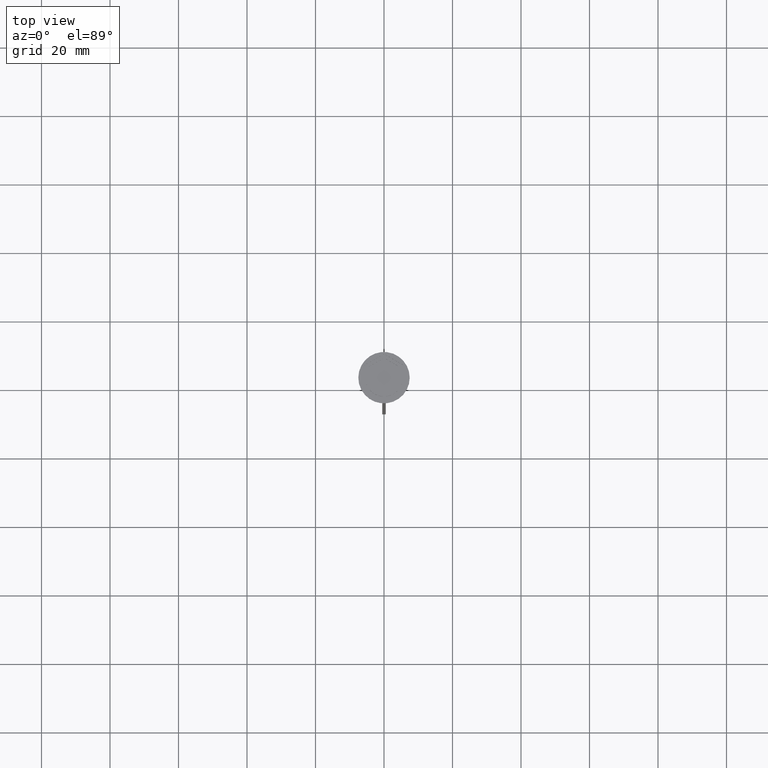
[diagram: clean part render]
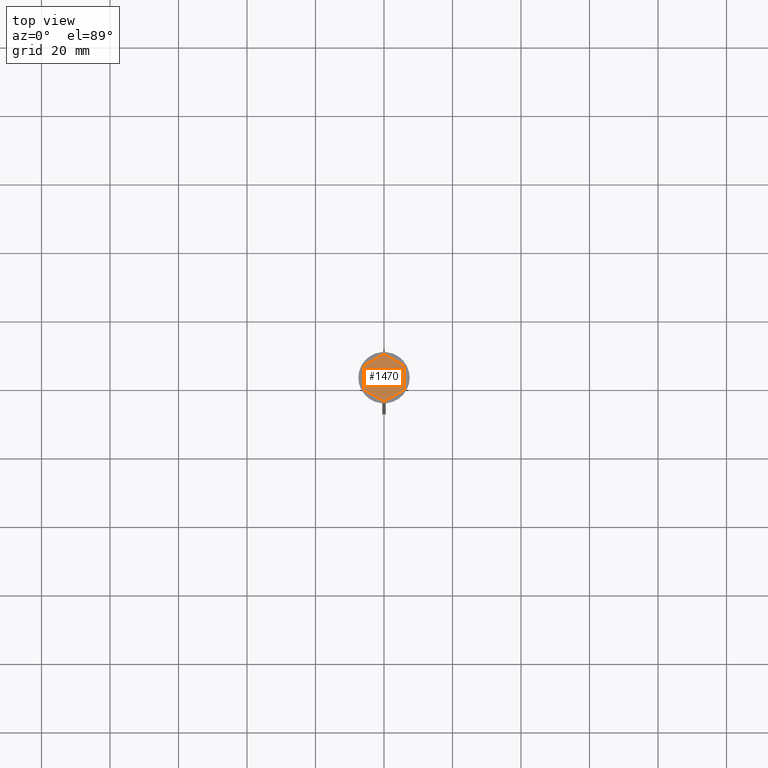
[diagram: same view with one face highlighted and labeled with its STEP entity id]
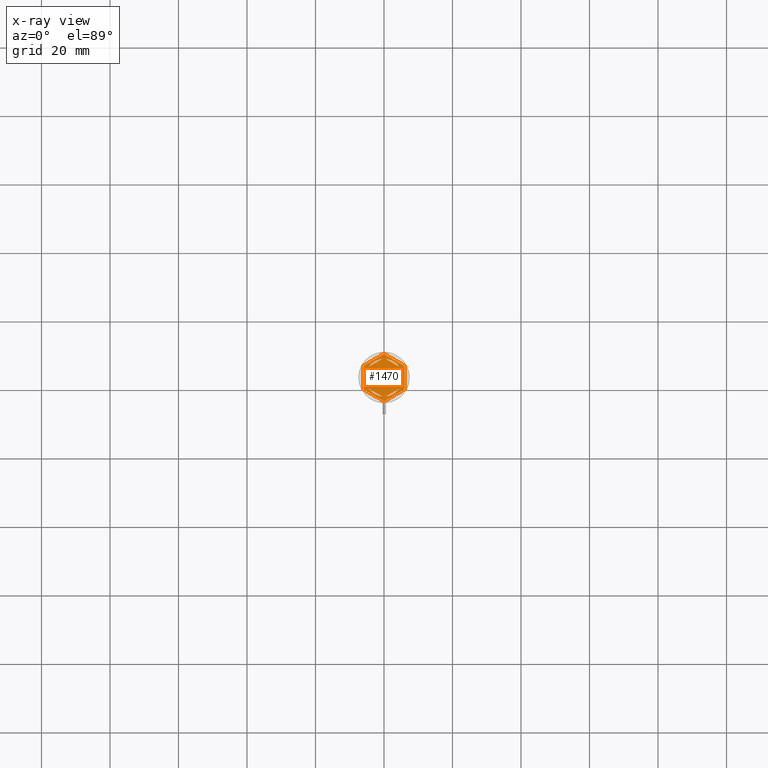
[diagram: x-ray of the same camera — body ghosted, the highlighted face saturated]
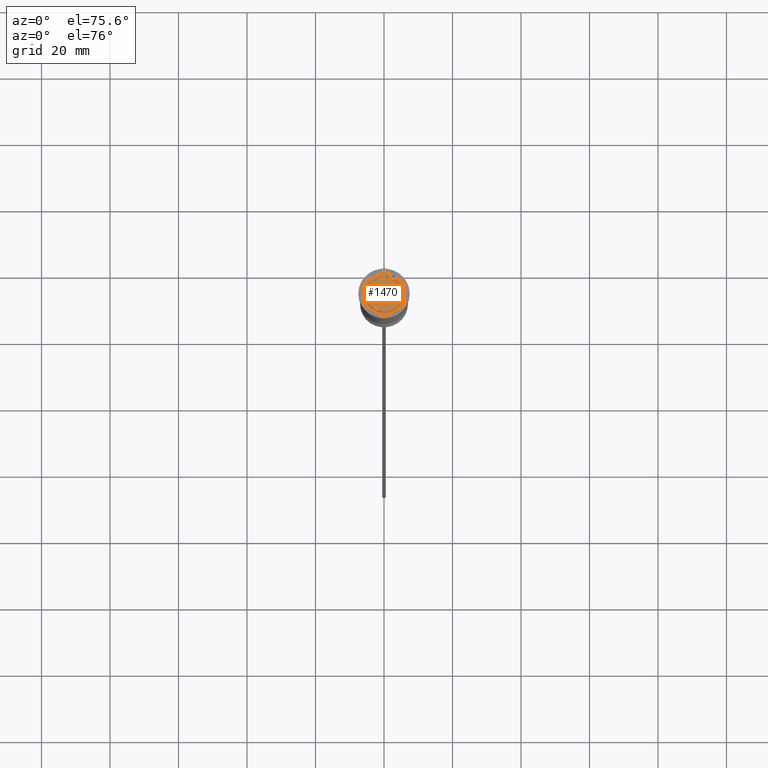
[diagram: same view with one face highlighted and labeled with its STEP entity id]
A machine part, top view. The second image highlights one B-rep face of the part: STEP entity #1470.
The next image is the same camera in x-ray: the body ghosted, the highlighted face saturated — about 0% of this face is hidden behind the body in this view.
A second angle (auxiliary view) of the same face is appended — the face is thin or edge-on in the first view.
In plain terms, the highlighted planar face has unit normal (0, 0, 1).
Its self-contained STEP definition (entity closure, byte-faithful):
#16 = VERTEX_POINT ( 'NONE', #292 ) ;
#48 = DIRECTION ( 'NONE',  ( 0.000000000000000000, 0.000000000000000000, 1.000000000000000000 ) ) ;
#66 = ORIENTED_EDGE ( 'NONE', *, *, #2383, .F. ) ;
#76 = EDGE_LOOP ( 'NONE', ( #2410, #2340 ) ) ;
#115 = CARTESIAN_POINT ( 'NONE',  ( 5.000000000000000888, 2.886751345948130876, -1.000000000000000888 ) ) ;
#124 = PLANE ( 'NONE',  #388 ) ;
#125 = AXIS2_PLACEMENT_3D ( 'NONE', #1254, #48, #1013 ) ;
#137 = FACE_BOUND ( 'NONE', #736, .T. ) ;
#143 = AXIS2_PLACEMENT_3D ( 'NONE', #426, #1204, #1743 ) ;
#144 = LINE ( 'NONE', #314, #956 ) ;
#171 = CARTESIAN_POINT ( 'NONE',  ( 0.000000000000000000, 0.000000000000000000, -1.000000000000000000 ) ) ;
#172 = EDGE_LOOP ( 'NONE', ( #1901, #2101, #1374 ) ) ;
#176 = CIRCLE ( 'NONE', #1583, 5.500000000000001776 ) ;
#187 = DIRECTION ( 'NONE',  ( 0.000000000000000000, 0.000000000000000000, 1.000000000000000000 ) ) ;
#195 = LINE ( 'NONE', #1186, #1111 ) ;
#213 = VERTEX_POINT ( 'NONE', #2369 ) ;
#229 = CARTESIAN_POINT ( 'NONE',  ( 0.5156865167015526330, -5.475770942661155161, -1.000000000000000888 ) ) ;
#247 = CARTESIAN_POINT ( 'NONE',  ( 0.000000000000000000, 0.000000000000000000, -1.000000000000000000 ) ) ;
#249 = VERTEX_POINT ( 'NONE', #1337 ) ;
#265 = DIRECTION ( 'NONE',  ( 0.000000000000000000, 0.000000000000000000, 1.000000000000000000 ) ) ;
#269 = DIRECTION ( 'NONE',  ( 0.000000000000000000, 1.000000000000000000, 0.000000000000000000 ) ) ;
#278 = VECTOR ( 'NONE', #1856, 1000.000000000000000 ) ;
#291 = EDGE_LOOP ( 'NONE', ( #1371, #66 ) ) ;
#292 = CARTESIAN_POINT ( 'NONE',  ( -6.000000000000000000, 3.464101615137752166, -1.000000000000000000 ) ) ;
#312 = CARTESIAN_POINT ( 'NONE',  ( 0.000000000000000000, 6.928203230275506996, -1.000000000000000000 ) ) ;
#314 = CARTESIAN_POINT ( 'NONE',  ( -6.000000000000000000, -3.464101615137755719, -1.000000000000000000 ) ) ;
#343 = CARTESIAN_POINT ( 'NONE',  ( -4.280685092543093048E-16, -6.928203230275507885, -1.000000000000000000 ) ) ;
#350 = LINE ( 'NONE', #502, #1442 ) ;
#376 = ORIENTED_EDGE ( 'NONE', *, *, #2174, .T. ) ;
#378 = EDGE_CURVE ( 'NONE', #1327, #2240, #1873, .T. ) ;
#383 = CARTESIAN_POINT ( 'NONE',  ( -6.000000000000000000, -3.464101615137755719, -1.000000000000000000 ) ) ;
#388 = AXIS2_PLACEMENT_3D ( 'NONE', #1319, #1280, #2029 ) ;
#396 = CARTESIAN_POINT ( 'NONE',  ( -4.280685092543093048E-16, -6.928203230275507885, -1.000000000000000000 ) ) ;
#410 = ORIENTED_EDGE ( 'NONE', *, *, #579, .T. ) ;
#412 = DIRECTION ( 'NONE',  ( 0.000000000000000000, -1.000000000000000000, 0.000000000000000000 ) ) ;
#424 = EDGE_CURVE ( 'NONE', #1005, #2262, #960, .T. ) ;
#426 = CARTESIAN_POINT ( 'NONE',  ( 0.000000000000000000, 0.000000000000000000, -1.000000000000000000 ) ) ;
#438 = LINE ( 'NONE', #804, #872 ) ;
#475 = CARTESIAN_POINT ( 'NONE',  ( 4.999999999999999112, -2.291287847477924355, -1.000000000000000888 ) ) ;
#502 = CARTESIAN_POINT ( 'NONE',  ( 6.000000000000000000, 3.464101615137753942, -1.000000000000000000 ) ) ;
#525 = FACE_OUTER_BOUND ( 'NONE', #1589, .T. ) ;
#559 = EDGE_CURVE ( 'NONE', #1779, #213, #2238, .T. ) ;
#579 = EDGE_CURVE ( 'NONE', #2385, #735, #1992, .T. ) ;
#580 = AXIS2_PLACEMENT_3D ( 'NONE', #247, #2367, #1567 ) ;
#606 = DIRECTION ( 'NONE',  ( 2.503857664561932376E-16, 1.000000000000000000, 0.000000000000000000 ) ) ;
#607 = CARTESIAN_POINT ( 'NONE',  ( -5.500000000000001776, 0.000000000000000000, -1.000000000000000000 ) ) ;
#690 = EDGE_CURVE ( 'NONE', #1174, #1490, #144, .T. ) ;
#719 = VECTOR ( 'NONE', #606, 1000.000000000000000 ) ;
#725 = VERTEX_POINT ( 'NONE', #1702 ) ;
#726 = FACE_BOUND ( 'NONE', #172, .T. ) ;
#735 = VERTEX_POINT ( 'NONE', #1514 ) ;
#736 = EDGE_LOOP ( 'NONE', ( #907, #1301 ) ) ;
#785 = DIRECTION ( 'NONE',  ( -0.8660254037844387076, -0.4999999999999997224, 0.000000000000000000 ) ) ;
#804 = CARTESIAN_POINT ( 'NONE',  ( -5.000000000000000888, 2.886751345948129099, -1.000000000000000888 ) ) ;
#825 = EDGE_CURVE ( 'NONE', #16, #1174, #195, .T. ) ;
#872 = VECTOR ( 'NONE', #269, 1000.000000000000000 ) ;
#885 = EDGE_CURVE ( 'NONE', #2240, #2134, #1625, .T. ) ;
#894 = DIRECTION ( 'NONE',  ( 0.8660254037844387076, -0.4999999999999998335, 0.000000000000000000 ) ) ;
#907 = ORIENTED_EDGE ( 'NONE', *, *, #2186, .F. ) ;
#910 = EDGE_LOOP ( 'NONE', ( #1635, #1072 ) ) ;
#924 = FACE_BOUND ( 'NONE', #910, .T. ) ;
#935 = DIRECTION ( 'NONE',  ( 1.000000000000000000, 0.000000000000000000, 0.000000000000000000 ) ) ;
#937 = LINE ( 'NONE', #396, #2313 ) ;
#942 = CARTESIAN_POINT ( 'NONE',  ( 5.999999999999998224, -3.464101615137753942, -1.000000000000000000 ) ) ;
#956 = VECTOR ( 'NONE', #2422, 1000.000000000000114 ) ;
#960 = LINE ( 'NONE', #1600, #1592 ) ;
#987 = VERTEX_POINT ( 'NONE', #475 ) ;
#1005 = VERTEX_POINT ( 'NONE', #2022 ) ;
#1013 = DIRECTION ( 'NONE',  ( 1.000000000000000000, 0.000000000000000000, 0.000000000000000000 ) ) ;
#1019 = CARTESIAN_POINT ( 'NONE',  ( -5.000000000000000888, -2.291287847477921247, -1.000000000000000888 ) ) ;
#1055 = CARTESIAN_POINT ( 'NONE',  ( -5.000000000000000888, 2.291287847477921247, -1.000000000000000888 ) ) ;
#1063 = FACE_BOUND ( 'NONE', #1102, .T. ) ;
#1072 = ORIENTED_EDGE ( 'NONE', *, *, #2373, .F. ) ;
#1083 = CARTESIAN_POINT ( 'NONE',  ( 0.000000000000000000, 6.928203230275506996, -1.000000000000000000 ) ) ;
#1097 = CARTESIAN_POINT ( 'NONE',  ( 0.5156865167015596274, 5.475770942661155161, -1.000000000000000888 ) ) ;
#1102 = EDGE_LOOP ( 'NONE', ( #1544, #2288 ) ) ;
#1111 = VECTOR ( 'NONE', #412, 1000.000000000000000 ) ;
#1113 = LINE ( 'NONE', #1498, #1168 ) ;
#1122 = DIRECTION ( 'NONE',  ( 1.000000000000000000, 0.000000000000000000, 0.000000000000000000 ) ) ;
#1164 = DIRECTION ( 'NONE',  ( 0.8660254037844385966, 0.5000000000000000000, 0.000000000000000000 ) ) ;
#1168 = VECTOR ( 'NONE', #1295, 1000.000000000000000 ) ;
#1174 = VERTEX_POINT ( 'NONE', #383 ) ;
#1186 = CARTESIAN_POINT ( 'NONE',  ( -6.000000000000000000, 3.464101615137752166, -1.000000000000000000 ) ) ;
#1204 = DIRECTION ( 'NONE',  ( 0.000000000000000000, 0.000000000000000000, 1.000000000000000000 ) ) ;
#1211 = CARTESIAN_POINT ( 'NONE',  ( -4.484313483298445036, 3.184483095183233470, -1.000000000000000888 ) ) ;
#1225 = CARTESIAN_POINT ( 'NONE',  ( 0.000000000000000000, 0.000000000000000000, -1.000000000000000000 ) ) ;
#1246 = DIRECTION ( 'NONE',  ( 1.000000000000000000, 0.000000000000000000, 0.000000000000000000 ) ) ;
#1248 = VECTOR ( 'NONE', #2086, 1000.000000000000000 ) ;
#1254 = CARTESIAN_POINT ( 'NONE',  ( 0.000000000000000000, 0.000000000000000000, -1.000000000000000000 ) ) ;
#1262 = ORIENTED_EDGE ( 'NONE', *, *, #825, .T. ) ;
#1280 = DIRECTION ( 'NONE',  ( 0.000000000000000000, 0.000000000000000000, 1.000000000000000000 ) ) ;
#1291 = CARTESIAN_POINT ( 'NONE',  ( 5.000000000000000888, 2.291287847477922135, -1.000000000000000888 ) ) ;
#1292 = VERTEX_POINT ( 'NONE', #2137 ) ;
#1295 = DIRECTION ( 'NONE',  ( -3.004629197474317076E-16, -1.000000000000000000, 0.000000000000000000 ) ) ;
#1301 = ORIENTED_EDGE ( 'NONE', *, *, #559, .F. ) ;
#1309 = EDGE_CURVE ( 'NONE', #987, #1941, #1491, .T. ) ;
#1312 = CIRCLE ( 'NONE', #580, 5.500000000000001776 ) ;
#1319 = CARTESIAN_POINT ( 'NONE',  ( 0.000000000000000000, 0.000000000000000000, -1.000000000000000000 ) ) ;
#1323 = CARTESIAN_POINT ( 'NONE',  ( -5.000000000000000888, -2.886751345948129099, -1.000000000000000888 ) ) ;
#1327 = VERTEX_POINT ( 'NONE', #1055 ) ;
#1337 = CARTESIAN_POINT ( 'NONE',  ( 4.484313483298442371, 3.184483095183238355, -1.000000000000000888 ) ) ;
#1351 = ORIENTED_EDGE ( 'NONE', *, *, #1654, .T. ) ;
#1353 = CARTESIAN_POINT ( 'NONE',  ( 0.000000000000000000, 0.000000000000000000, -1.000000000000000000 ) ) ;
#1355 = ORIENTED_EDGE ( 'NONE', *, *, #690, .T. ) ;
#1371 = ORIENTED_EDGE ( 'NONE', *, *, #1572, .F. ) ;
#1374 = ORIENTED_EDGE ( 'NONE', *, *, #885, .F. ) ;
#1395 = VECTOR ( 'NONE', #1636, 1000.000000000000227 ) ;
#1420 = CARTESIAN_POINT ( 'NONE',  ( 5.999999999999998224, -3.464101615137753942, -1.000000000000000000 ) ) ;
#1442 = VECTOR ( 'NONE', #1484, 1000.000000000000000 ) ;
#1470 = ADVANCED_FACE ( 'NONE', ( #924, #2448, #1063, #1847, #726, #137, #525 ), #124, .T. ) ;
#1481 = VERTEX_POINT ( 'NONE', #1097 ) ;
#1484 = DIRECTION ( 'NONE',  ( -0.8660254037844387076, 0.4999999999999998335, 0.000000000000000000 ) ) ;
#1490 = VERTEX_POINT ( 'NONE', #343 ) ;
#1491 = CIRCLE ( 'NONE', #125, 5.500000000000001776 ) ;
#1498 = CARTESIAN_POINT ( 'NONE',  ( 4.999999999999999112, -2.886751345948130432, -1.000000000000000888 ) ) ;
#1514 = CARTESIAN_POINT ( 'NONE',  ( 6.000000000000000000, 3.464101615137753942, -1.000000000000000000 ) ) ;
#1522 = CARTESIAN_POINT ( 'NONE',  ( 0.000000000000000000, 0.000000000000000000, -1.000000000000000000 ) ) ;
#1544 = ORIENTED_EDGE ( 'NONE', *, *, #1618, .F. ) ;
#1545 = DIRECTION ( 'NONE',  ( 1.000000000000000000, 0.000000000000000000, 0.000000000000000000 ) ) ;
#1567 = DIRECTION ( 'NONE',  ( 1.000000000000000000, 0.000000000000000000, 0.000000000000000000 ) ) ;
#1572 = EDGE_CURVE ( 'NONE', #725, #1292, #176, .T. ) ;
#1583 = AXIS2_PLACEMENT_3D ( 'NONE', #1522, #1935, #1122 ) ;
#1589 = EDGE_LOOP ( 'NONE', ( #1984, #376, #1262, #1355, #1351, #410 ) ) ;
#1592 = VECTOR ( 'NONE', #785, 1000.000000000000114 ) ;
#1600 = CARTESIAN_POINT ( 'NONE',  ( -1.734723475976807094E-15, -5.773502691896258199, -1.000000000000000888 ) ) ;
#1618 = EDGE_CURVE ( 'NONE', #2262, #1005, #1745, .T. ) ;
#1625 = CIRCLE ( 'NONE', #143, 5.500000000000001776 ) ;
#1635 = ORIENTED_EDGE ( 'NONE', *, *, #2049, .F. ) ;
#1636 = DIRECTION ( 'NONE',  ( -0.8660254037844385966, -0.4999999999999998890, 0.000000000000000000 ) ) ;
#1654 = EDGE_CURVE ( 'NONE', #1490, #2385, #937, .T. ) ;
#1678 = LINE ( 'NONE', #115, #2405 ) ;
#1702 = CARTESIAN_POINT ( 'NONE',  ( -4.484313483298445036, -3.184483095183233470, -1.000000000000000888 ) ) ;
#1743 = DIRECTION ( 'NONE',  ( 1.000000000000000000, 0.000000000000000000, 0.000000000000000000 ) ) ;
#1745 = CIRCLE ( 'NONE', #2110, 5.500000000000001776 ) ;
#1749 = AXIS2_PLACEMENT_3D ( 'NONE', #171, #187, #935 ) ;
#1779 = VERTEX_POINT ( 'NONE', #1211 ) ;
#1847 = FACE_BOUND ( 'NONE', #291, .T. ) ;
#1856 = DIRECTION ( 'NONE',  ( 0.8660254037844385966, 0.5000000000000001110, -0.000000000000000000 ) ) ;
#1873 = CIRCLE ( 'NONE', #2481, 5.500000000000001776 ) ;
#1901 = ORIENTED_EDGE ( 'NONE', *, *, #378, .F. ) ;
#1935 = DIRECTION ( 'NONE',  ( 0.000000000000000000, 0.000000000000000000, 1.000000000000000000 ) ) ;
#1940 = VERTEX_POINT ( 'NONE', #1083 ) ;
#1941 = VERTEX_POINT ( 'NONE', #1291 ) ;
#1983 = LINE ( 'NONE', #312, #1395 ) ;
#1984 = ORIENTED_EDGE ( 'NONE', *, *, #2351, .T. ) ;
#1992 = LINE ( 'NONE', #1420, #719 ) ;
#2022 = CARTESIAN_POINT ( 'NONE',  ( 4.484313483298445036, -3.184483095183233026, -1.000000000000000888 ) ) ;
#2029 = DIRECTION ( 'NONE',  ( 1.000000000000000000, 0.000000000000000000, -0.000000000000000000 ) ) ;
#2047 = LINE ( 'NONE', #1323, #1248 ) ;
#2049 = EDGE_CURVE ( 'NONE', #249, #1481, #2358, .T. ) ;
#2052 = CARTESIAN_POINT ( 'NONE',  ( 4.336808689942017736E-16, 5.773502691896259087, -1.000000000000000888 ) ) ;
#2086 = DIRECTION ( 'NONE',  ( -0.8660254037844385966, 0.5000000000000001110, 0.000000000000000000 ) ) ;
#2096 = DIRECTION ( 'NONE',  ( 0.000000000000000000, 0.000000000000000000, 1.000000000000000000 ) ) ;
#2101 = ORIENTED_EDGE ( 'NONE', *, *, #2227, .F. ) ;
#2110 = AXIS2_PLACEMENT_3D ( 'NONE', #1353, #2096, #1545 ) ;
#2134 = VERTEX_POINT ( 'NONE', #1019 ) ;
#2137 = CARTESIAN_POINT ( 'NONE',  ( -0.5156865167015569629, -5.475770942661155161, -1.000000000000000888 ) ) ;
#2174 = EDGE_CURVE ( 'NONE', #1940, #16, #1983, .T. ) ;
#2186 = EDGE_CURVE ( 'NONE', #213, #1779, #1312, .T. ) ;
#2227 = EDGE_CURVE ( 'NONE', #2134, #1327, #438, .T. ) ;
#2238 = LINE ( 'NONE', #2052, #278 ) ;
#2240 = VERTEX_POINT ( 'NONE', #607 ) ;
#2262 = VERTEX_POINT ( 'NONE', #229 ) ;
#2288 = ORIENTED_EDGE ( 'NONE', *, *, #424, .F. ) ;
#2313 = VECTOR ( 'NONE', #1164, 1000.000000000000227 ) ;
#2340 = ORIENTED_EDGE ( 'NONE', *, *, #2380, .F. ) ;
#2351 = EDGE_CURVE ( 'NONE', #735, #1940, #350, .T. ) ;
#2358 = CIRCLE ( 'NONE', #1749, 5.500000000000001776 ) ;
#2367 = DIRECTION ( 'NONE',  ( 0.000000000000000000, 0.000000000000000000, 1.000000000000000000 ) ) ;
#2369 = CARTESIAN_POINT ( 'NONE',  ( -0.5156865167015569629, 5.475770942661155161, -1.000000000000000888 ) ) ;
#2373 = EDGE_CURVE ( 'NONE', #1481, #249, #1678, .T. ) ;
#2380 = EDGE_CURVE ( 'NONE', #1941, #987, #1113, .T. ) ;
#2383 = EDGE_CURVE ( 'NONE', #1292, #725, #2047, .T. ) ;
#2385 = VERTEX_POINT ( 'NONE', #942 ) ;
#2405 = VECTOR ( 'NONE', #894, 1000.000000000000114 ) ;
#2410 = ORIENTED_EDGE ( 'NONE', *, *, #1309, .F. ) ;
#2422 = DIRECTION ( 'NONE',  ( 0.8660254037844388186, -0.4999999999999997224, 0.000000000000000000 ) ) ;
#2448 = FACE_BOUND ( 'NONE', #76, .T. ) ;
#2481 = AXIS2_PLACEMENT_3D ( 'NONE', #1225, #265, #1246 ) ;